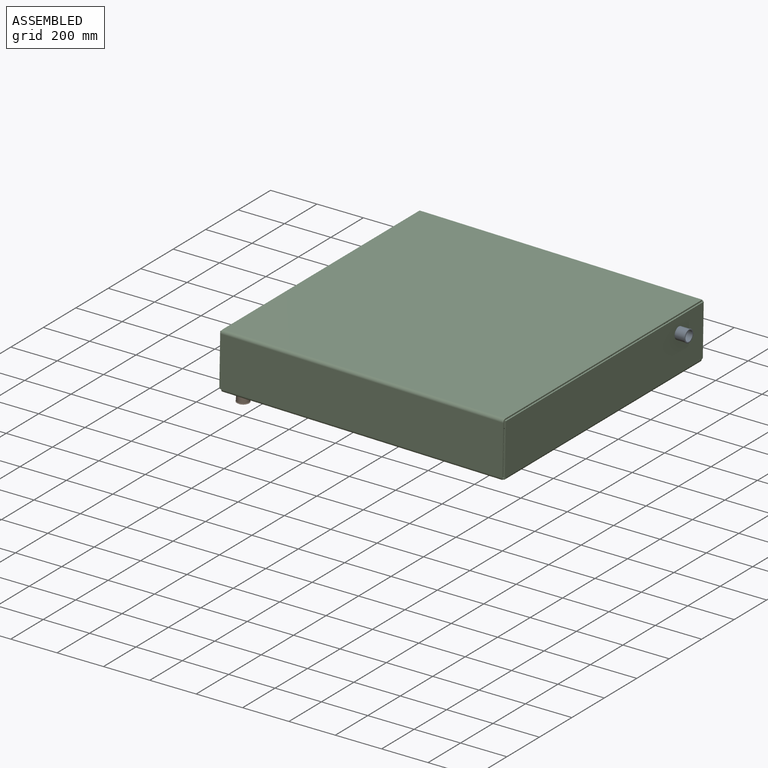
[diagram: assembled view]
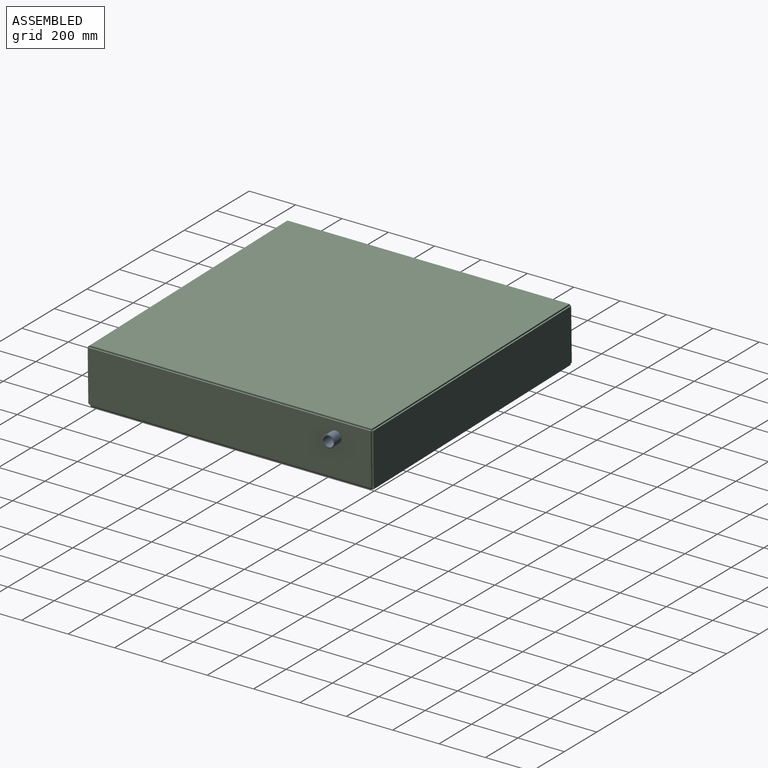
[diagram: assembled view, second angle]
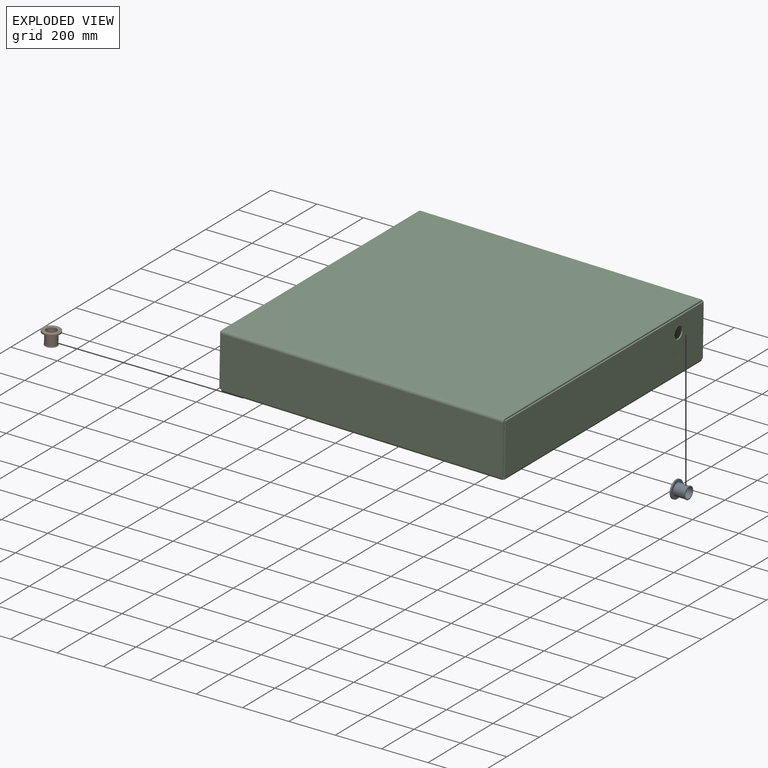
[diagram: exploded view]
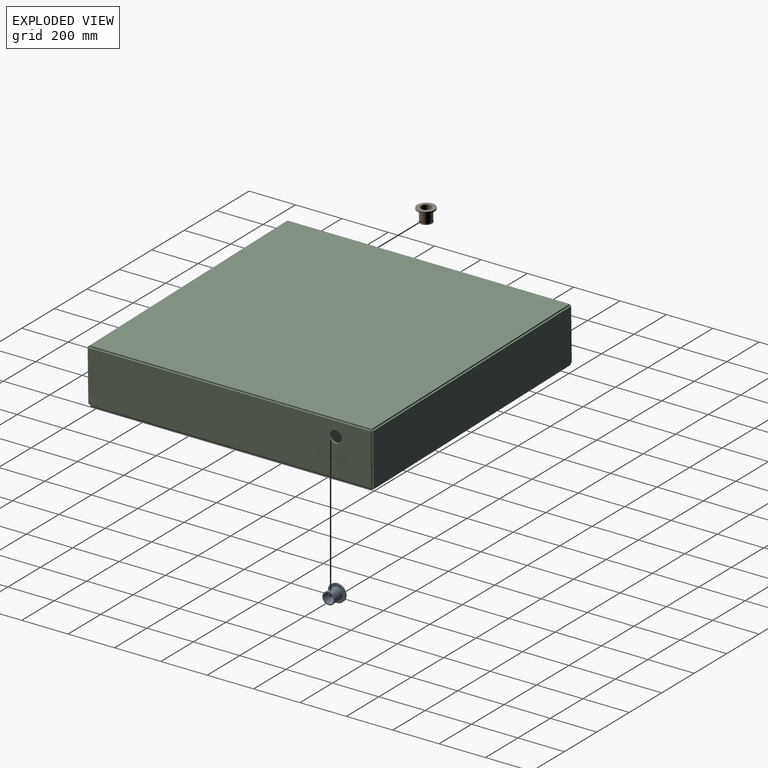
[diagram: exploded view, second angle]
ASSEMBLY  parts=3 mates=2
PART A: 7 faces, bbox 57.2x76.2x76.2 mm
  f0: cylinder r=25.4mm len=50.8mm, axis (-1,0,0), area 7600.6mm2, adj f2,f6
  f1: cylinder r=38.1mm len=76.2mm, axis (-1,0,0), area 1520.1mm2, adj f2,f3
  f2: plane 76.2x76.2mm, normal (1,0,0), area 2533.5mm2, adj f0,f1
  f3: plane 76.2x76.2mm, normal (-1,0,0), area 3008.6mm2, adj f1,f4
  f4: cylinder r=22.23mm len=57.15mm, axis (-1,0,0), area 7980.6mm2, adj f3,f5
  f5: plane 50.8x50.8mm, normal (1,0,0), area 475mm2, adj f4,f6
  f6: torus R=25.4mm, axis (-1,0,0), area 827.6mm2, adj f0,f5
PART B: same geometry as A
PART C: 56 faces, bbox 1231.9x1231.9x241.3 mm
  f0: plane 1206.5x1206.5mm, normal (0,0,-1), area 1453615.4mm2, adj f11,f30,f41,f52,f55
  f1: plane 1206.5x1206.5mm, normal (0,0,1), area 1453615.4mm2, adj f12,f31,f42,f53,f55
  f2: plane 6.35x6.32mm, normal (0,0,-1), area 40.1mm2, adj f4,f7,f8,f10
  f3: plane 1219.14x6.35mm, normal (0,0,1), area 7741.5mm2, adj f4,f6,f7,f8
  f4: plane 222.22x6.35mm, normal (1,0,0), area 1411.1mm2, adj f2,f3,f7,f8
  f5: plane 6.35x6.32mm, normal (0,0,-1), area 40.1mm2, adj f6,f7,f8,f9
  f6: plane 222.22x6.35mm, normal (-1,0,0), area 1411.1mm2, adj f3,f5,f7,f8
  f7: plane 1219.14x222.22mm, normal (0,1,0), area 270916.5mm2, adj f2,f3,f4,f5,f6,f11
  f8: plane 1219.14x222.22mm, normal (0,-1,0), area 270916.5mm2, adj f2,f3,f4,f5,f6,f12
  f9: plane 12.7x12.7mm, normal (-1,0,0), area 95mm2, adj f5,f11,f12,f50
  f10: plane 12.7x12.7mm, normal (1,0,0), area 95mm2, adj f2,f11,f12,f39
  f11: cylinder r=12.7mm len=1206.5mm, axis (-1,0,0), area 24068.6mm2, adj f0,f7,f9,f10
  f12: cylinder r=6.35mm len=1206.5mm, axis (-1,0,0), area 12034.3mm2, adj f1,f8,f9,f10
  f13: plane 6.35x6.32mm, normal (0,0,-1), area 40.1mm2, adj f14,f17,f18,f28
  f14: plane 215.9x6.35mm, normal (-1,0,0), area 1371mm2, adj f13,f17,f18,f24
  f15: plane 6.35x6.32mm, normal (0,0,-1), area 40.1mm2, adj f16,f17,f18,f29
  f16: plane 215.9x6.35mm, normal (1,0,0), area 1371mm2, adj f15,f17,f18,f25
  f17: plane 1219.14x215.9mm, normal (0,-1,0), area 263212.1mm2, adj f13,f14,f15,f16,f26,f30
  f18: plane 1219.14x215.9mm, normal (0,1,0), area 263212.1mm2, adj f13,f14,f15,f16,f27,f31
  f19: plane 1212.82x6.35mm, normal (1,0,0), area 7701.4mm2, adj f20,f22,f23,f25
  f20: plane 1219.14x6.35mm, normal (0,1,0), area 7741.5mm2, adj f19,f21,f22,f23
  f21: plane 1212.82x6.35mm, normal (-1,0,0), area 7701.4mm2, adj f20,f22,f23,f24
  f22: plane 1219.14x1212.82mm, normal (0,0,1), area 1478595.6mm2, adj f19,f20,f21,f26
  f23: plane 1219.14x1212.82mm, normal (0,0,-1), area 1478595.6mm2, adj f19,f20,f21,f27
  f24: plane 12.7x12.7mm, normal (-1,0,0), area 95mm2, adj f14,f21,f26,f27
  f25: plane 12.7x12.7mm, normal (1,0,0), area 95mm2, adj f16,f19,f26,f27
  f26: cylinder r=12.7mm len=1219.14mm, axis (-1,0,0), area 24320.7mm2, adj f17,f22,f24,f25
  f27: cylinder r=6.35mm len=1219.14mm, axis (-1,0,0), area 12160.4mm2, adj f18,f23,f24,f25
  f28: plane 12.7x12.7mm, normal (-1,0,0), area 95mm2, adj f13,f30,f31,f51
  f29: plane 12.7x12.7mm, normal (1,0,0), area 95mm2, adj f15,f30,f31,f40
  f30: cylinder r=12.7mm len=1206.5mm, axis (-1,0,0), area 24068.6mm2, adj f0,f17,f28,f29
  f31: cylinder r=6.35mm len=1206.5mm, axis (-1,0,0), area 12034.3mm2, adj f1,f18,f28,f29
  f32: plane 6.35x6.32mm, normal (0,0,-1), area 40.1mm2, adj f33,f37,f38,f40
  f33: plane 222.22x6.35mm, normal (0,-1,0), area 1411.1mm2, adj f32,f36,f37,f38
  f34: plane 6.35x6.32mm, normal (0,0,-1), area 40.1mm2, adj f35,f37,f38,f39
  f35: plane 222.22x6.35mm, normal (0,1,0), area 1411.1mm2, adj f34,f36,f37,f38
  f36: plane 1219.14x6.35mm, normal (0,0,1), area 7741.5mm2, adj f33,f35,f37,f38
  f37: plane 1219.14x222.22mm, normal (1,0,0), area 268889.7mm2, adj f32,f33,f34,f35,f36,f41,f54
  f38: plane 1219.14x222.22mm, normal (-1,0,0), area 268889.7mm2, adj f32,f33,f34,f35,f36,f42,f54
  f39: plane 12.7x12.7mm, normal (0,1,0), area 95mm2, adj f10,f34,f41,f42
  f40: plane 12.7x12.7mm, normal (0,-1,0), area 95mm2, adj f29,f32,f41,f42
  f41: cylinder r=12.7mm len=1206.5mm, axis (0,1,0), area 24068.6mm2, adj f0,f37,f39,f40
  f42: cylinder r=6.35mm len=1206.5mm, axis (0,1,0), area 12034.3mm2, adj f1,f38,f39,f40
  f43: plane 6.35x6.32mm, normal (0,0,-1), area 40.1mm2, adj f46,f48,f49,f50
  f44: plane 222.22x6.35mm, normal (0,-1,0), area 1411.1mm2, adj f45,f47,f48,f49
  f45: plane 1219.14x6.35mm, normal (0,0,1), area 7741.5mm2, adj f44,f46,f48,f49
  f46: plane 222.22x6.35mm, normal (0,1,0), area 1411.1mm2, adj f43,f45,f48,f49
  f47: plane 6.35x6.32mm, normal (0,0,-1), area 40.1mm2, adj f44,f48,f49,f51
  f48: plane 1219.14x222.22mm, normal (-1,0,0), area 270916.5mm2, adj f43,f44,f45,f46,f47,f52
  f49: plane 1219.14x222.22mm, normal (1,0,0), area 270916.5mm2, adj f43,f44,f45,f46,f47,f53
  f50: plane 12.7x12.7mm, normal (0,1,0), area 95mm2, adj f9,f43,f52,f53
  f51: plane 12.7x12.7mm, normal (0,-1,0), area 95mm2, adj f28,f47,f52,f53
  f52: cylinder r=12.7mm len=1206.5mm, axis (0,1,0), area 24068.6mm2, adj f0,f48,f50,f51
  f53: cylinder r=6.35mm len=1206.5mm, axis (0,1,0), area 12034.3mm2, adj f1,f49,f50,f51
  f54: cylinder r=25.4mm len=50.8mm, axis (1,0,0), area 1013.4mm2, adj f37,f38
  f55: cylinder r=25.4mm len=50.8mm, axis (0,0,-1), area 1013.4mm2, adj f0,f1
PLACE A rot(axis=(0,1,0),1deg) t=(284.72,261.93,478.44)mm
PLACE B rot(axis=(0,1,0),91deg) t=(-873.62,-747.72,340.31)mm
PLACE C rot(axis=(0,1,0),1deg) t=(-319.33,-195.27,438.4)mm
MATE fastened C.f55 <-> B.f0  axis (0.02,0,1) through (-873.73,-747.72,333.96)mm
MATE fastened A.f0 <-> C.f54  axis (-1,0,0.02) through (291.07,261.93,478.33)mm
